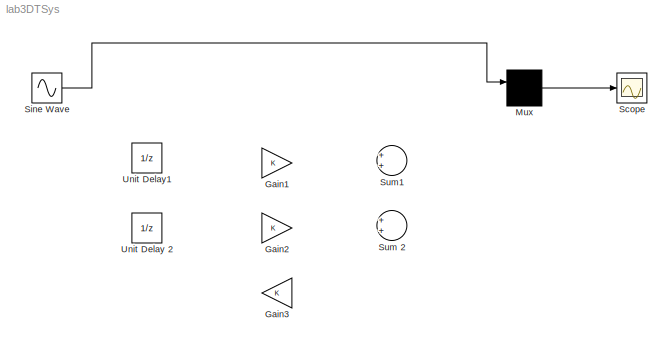
MODEL lab3DTSys
KIND model
BLOCK [Gain] Gain1
BLOCK [Gain] Gain2
BLOCK [Gain] Gain3
BLOCK [Mux] Mux
  Inputs = 2
  Ports = [2, 1]
BLOCK [Scope] Scope
  DataFormat = Array
  Floating = off
  NumInputPorts = 1
  Ports = [1]
  SampleTime = 0
  TickLabels = on
  TimeRange = 100
  YMax = 4
  YMin = -3
BLOCK [Sin] Sine Wave
  Frequency = pi/16
  Ports = [0, 1]
  SampleTime = 1
BLOCK [Sum] Sum 2
  Ports = [2, 1]
BLOCK [Sum] Sum1
  Ports = [2, 1]
BLOCK [UnitDelay] Unit Delay 2
BLOCK [UnitDelay] Unit Delay1
LINE Mux:1 -> Scope:1
LINE Sine Wave:1 -> Mux:1
